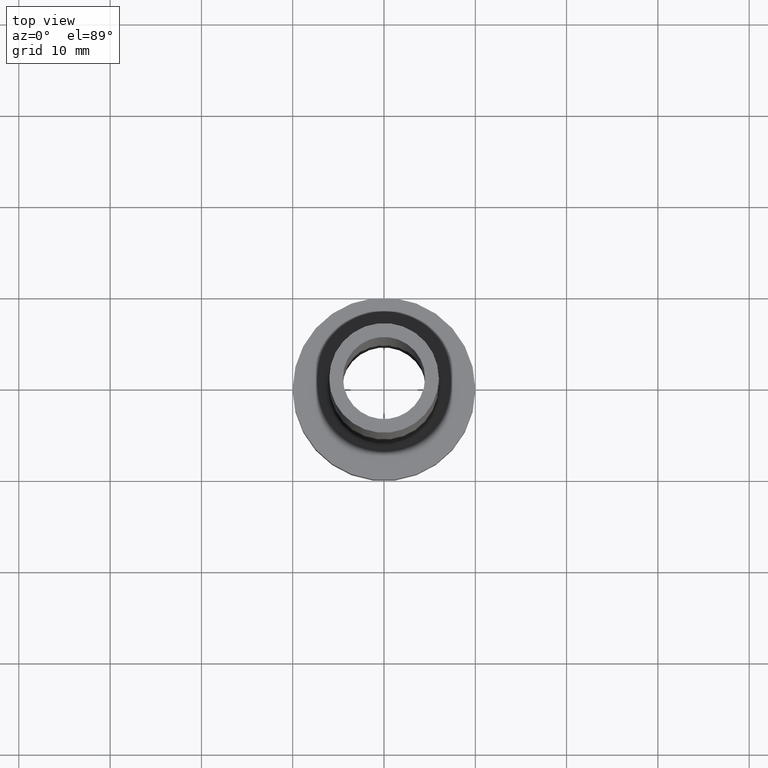
[diagram: clean part render]
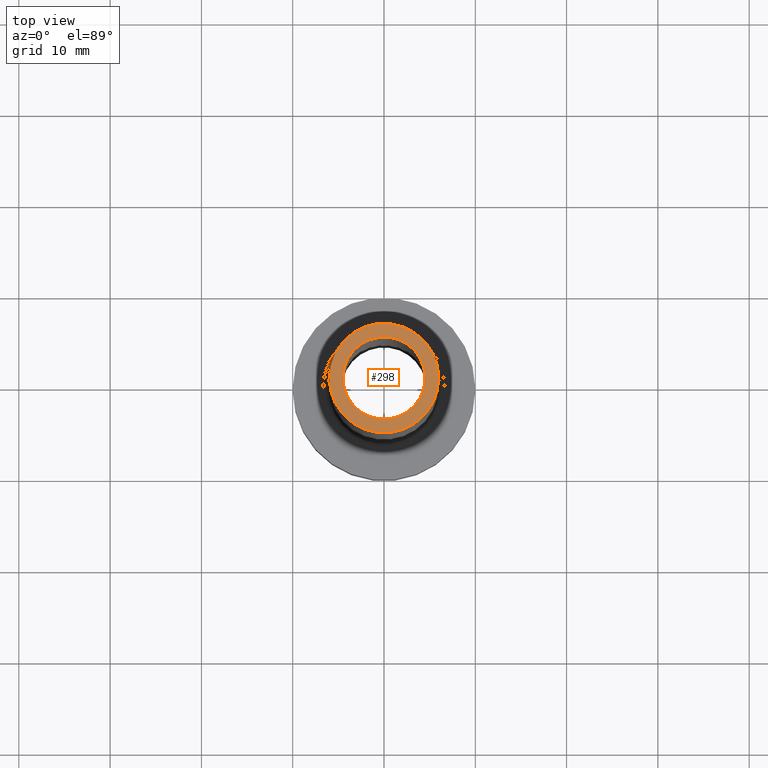
[diagram: same view with one face highlighted and labeled with its STEP entity id]
A machine part, top view. The second image highlights one B-rep face of the part: STEP entity #298.
In plain terms, the highlighted planar face has unit normal (0, 0, 1).
Its self-contained STEP definition (entity closure, byte-faithful):
#4 = DIRECTION ( 'NONE',  ( 0.000000000000000000, 0.000000000000000000, 1.000000000000000000 ) ) ;
#7 = EDGE_CURVE ( 'NONE', #74, #300, #407, .T. ) ;
#8 = CARTESIAN_POINT ( 'NONE',  ( 0.000000000000000000, 0.000000000000000000, 75.00000000000001421 ) ) ;
#26 = CIRCLE ( 'NONE', #185, 4.500000000000000000 ) ;
#39 = AXIS2_PLACEMENT_3D ( 'NONE', #208, #279, #345 ) ;
#63 = CIRCLE ( 'NONE', #39, 6.000000000000000888 ) ;
#74 = VERTEX_POINT ( 'NONE', #240 ) ;
#106 = CARTESIAN_POINT ( 'NONE',  ( 0.000000000000000000, 0.000000000000000000, 75.00000000000001421 ) ) ;
#109 = DIRECTION ( 'NONE',  ( 0.000000000000000000, 0.000000000000000000, 1.000000000000000000 ) ) ;
#111 = EDGE_CURVE ( 'NONE', #430, #338, #63, .T. ) ;
#116 = CARTESIAN_POINT ( 'NONE',  ( 0.000000000000000000, 0.000000000000000000, 75.00000000000001421 ) ) ;
#131 = CARTESIAN_POINT ( 'NONE',  ( 0.000000000000000000, 0.000000000000000000, 75.00000000000001421 ) ) ;
#148 = EDGE_LOOP ( 'NONE', ( #151, #457 ) ) ;
#151 = ORIENTED_EDGE ( 'NONE', *, *, #7, .F. ) ;
#185 = AXIS2_PLACEMENT_3D ( 'NONE', #131, #268, #371 ) ;
#192 = PLANE ( 'NONE',  #393 ) ;
#208 = CARTESIAN_POINT ( 'NONE',  ( 0.000000000000000000, 0.000000000000000000, 75.00000000000001421 ) ) ;
#233 = CARTESIAN_POINT ( 'NONE',  ( 6.000000000000000888, 7.347880794884120722E-16, 75.00000000000001421 ) ) ;
#235 = EDGE_CURVE ( 'NONE', #338, #430, #413, .T. ) ;
#240 = CARTESIAN_POINT ( 'NONE',  ( -4.500000000000000000, 0.000000000000000000, 75.00000000000001421 ) ) ;
#248 = ORIENTED_EDGE ( 'NONE', *, *, #235, .T. ) ;
#255 = DIRECTION ( 'NONE',  ( 1.000000000000000000, 0.000000000000000000, -0.000000000000000000 ) ) ;
#258 = DIRECTION ( 'NONE',  ( 1.000000000000000000, 0.000000000000000000, 0.000000000000000000 ) ) ;
#266 = AXIS2_PLACEMENT_3D ( 'NONE', #106, #425, #272 ) ;
#268 = DIRECTION ( 'NONE',  ( 0.000000000000000000, 0.000000000000000000, 1.000000000000000000 ) ) ;
#272 = DIRECTION ( 'NONE',  ( 1.000000000000000000, 0.000000000000000000, 0.000000000000000000 ) ) ;
#279 = DIRECTION ( 'NONE',  ( 0.000000000000000000, 0.000000000000000000, 1.000000000000000000 ) ) ;
#298 = ADVANCED_FACE ( 'NONE', ( #429, #325 ), #192, .T. ) ;
#300 = VERTEX_POINT ( 'NONE', #392 ) ;
#325 = FACE_OUTER_BOUND ( 'NONE', #387, .T. ) ;
#326 = AXIS2_PLACEMENT_3D ( 'NONE', #116, #4, #258 ) ;
#338 = VERTEX_POINT ( 'NONE', #444 ) ;
#345 = DIRECTION ( 'NONE',  ( 1.000000000000000000, 0.000000000000000000, 0.000000000000000000 ) ) ;
#371 = DIRECTION ( 'NONE',  ( 1.000000000000000000, 0.000000000000000000, 0.000000000000000000 ) ) ;
#381 = EDGE_CURVE ( 'NONE', #300, #74, #26, .T. ) ;
#387 = EDGE_LOOP ( 'NONE', ( #248, #420 ) ) ;
#392 = CARTESIAN_POINT ( 'NONE',  ( 4.500000000000000000, 5.510910596163087583E-16, 75.00000000000001421 ) ) ;
#393 = AXIS2_PLACEMENT_3D ( 'NONE', #8, #109, #255 ) ;
#407 = CIRCLE ( 'NONE', #266, 4.500000000000000000 ) ;
#413 = CIRCLE ( 'NONE', #326, 6.000000000000000888 ) ;
#420 = ORIENTED_EDGE ( 'NONE', *, *, #111, .T. ) ;
#425 = DIRECTION ( 'NONE',  ( 0.000000000000000000, 0.000000000000000000, 1.000000000000000000 ) ) ;
#429 = FACE_BOUND ( 'NONE', #148, .T. ) ;
#430 = VERTEX_POINT ( 'NONE', #233 ) ;
#444 = CARTESIAN_POINT ( 'NONE',  ( -6.000000000000000888, 0.000000000000000000, 75.00000000000001421 ) ) ;
#457 = ORIENTED_EDGE ( 'NONE', *, *, #381, .F. ) ;